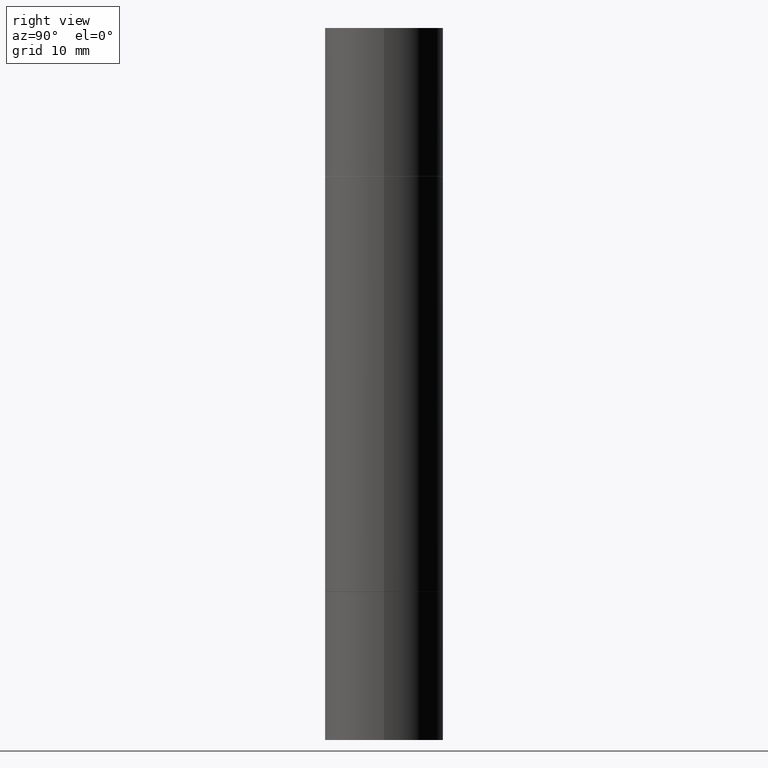
[diagram: clean part render]
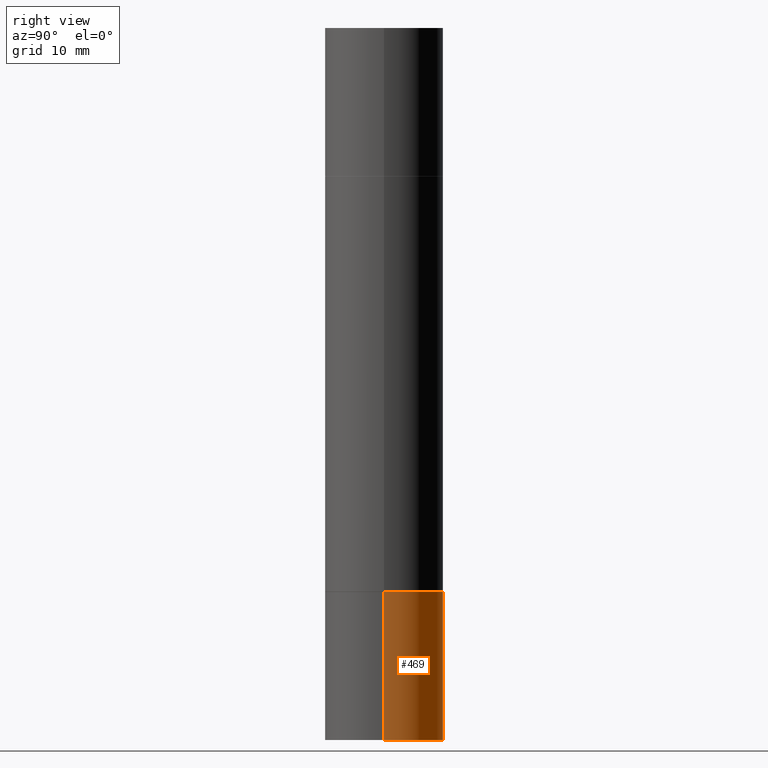
[diagram: same view with one face highlighted and labeled with its STEP entity id]
A machine part, right view. The second image highlights one B-rep face of the part: STEP entity #469.
In plain terms, the highlighted cylindrical surface (partial cylindrical patch) has radius 6.35 mm, axis along (-0, 0, 1).
Its self-contained STEP definition (entity closure, byte-faithful):
#14 = ORIENTED_EDGE ( 'NONE', *, *, #49, .F. ) ;
#49 = EDGE_CURVE ( 'NONE', #656, #619, #154, .T. ) ;
#98 = ORIENTED_EDGE ( 'NONE', *, *, #121, .F. ) ;
#118 = EDGE_CURVE ( 'NONE', #656, #542, #248, .T. ) ;
#121 = EDGE_CURVE ( 'NONE', #619, #498, #368, .T. ) ;
#154 = LINE ( 'NONE', #466, #301 ) ;
#189 = LINE ( 'NONE', #398, #369 ) ;
#211 = DIRECTION ( 'NONE',  ( 1.000000000000000000, -6.982962677686266711E-15, 0.000000000000000000 ) ) ;
#218 = DIRECTION ( 'NONE',  ( -2.445468806185136597E-29, 3.491481338843145583E-15, 1.000000000000000000 ) ) ;
#245 = DIRECTION ( 'NONE',  ( -2.445468806185136877E-29, 3.491481338843145188E-15, 1.000000000000000000 ) ) ;
#248 = CIRCLE ( 'NONE', #321, 0.2500000000000000000 ) ;
#255 = CARTESIAN_POINT ( 'NONE',  ( -0.2500000000000000000, -7.606999258740704349E-15, -3.000000000000000444 ) ) ;
#264 = CARTESIAN_POINT ( 'NONE',  ( 0.000000000000000000, 0.000000000000000000, 0.000000000000000000 ) ) ;
#265 = CARTESIAN_POINT ( 'NONE',  ( 5.807988414689700538E-29, -8.292268179752471696E-15, -2.375000000000000000 ) ) ;
#266 = CARTESIAN_POINT ( 'NONE',  ( 0.2500000000000000000, -1.222018468595100303E-14, -3.000000000000000444 ) ) ;
#267 = DIRECTION ( 'NONE',  ( -2.445468806185136877E-29, 3.491481338843145188E-15, 1.000000000000000000 ) ) ;
#281 = EDGE_LOOP ( 'NONE', ( #291, #560, #98, #14 ) ) ;
#291 = ORIENTED_EDGE ( 'NONE', *, *, #118, .T. ) ;
#301 = VECTOR ( 'NONE', #267, 39.37007874015748143 ) ;
#321 = AXIS2_PLACEMENT_3D ( 'NONE', #573, #521, #633 ) ;
#351 = FACE_OUTER_BOUND ( 'NONE', #281, .T. ) ;
#356 = EDGE_CURVE ( 'NONE', #542, #498, #189, .T. ) ;
#368 = CIRCLE ( 'NONE', #627, 0.2500000000000000000 ) ;
#369 = VECTOR ( 'NONE', #245, 39.37007874015748143 ) ;
#398 = CARTESIAN_POINT ( 'NONE',  ( -0.2500000000000000000, 1.776356839400250465E-15, -1.229733772563726445E-29 ) ) ;
#435 = AXIS2_PLACEMENT_3D ( 'NONE', #264, #562, #520 ) ;
#466 = CARTESIAN_POINT ( 'NONE',  ( 0.2500000000000000000, -1.745740669421566678E-15, 1.219044193948983948E-29 ) ) ;
#469 = ADVANCED_FACE ( 'NONE', ( #351 ), #554, .T. ) ;
#498 = VERTEX_POINT ( 'NONE', #564 ) ;
#511 = CARTESIAN_POINT ( 'NONE',  ( 0.2500000000000000000, -1.003800884917403837E-14, -2.375000000000000000 ) ) ;
#520 = DIRECTION ( 'NONE',  ( 1.000000000000000000, -6.982962677686266711E-15, 4.876176775795935793E-29 ) ) ;
#521 = DIRECTION ( 'NONE',  ( -2.445468806185136597E-29, 3.491481338843145583E-15, 1.000000000000000000 ) ) ;
#542 = VERTEX_POINT ( 'NONE', #255 ) ;
#554 = CYLINDRICAL_SURFACE ( 'NONE', #435, 0.2500000000000000000 ) ;
#560 = ORIENTED_EDGE ( 'NONE', *, *, #356, .T. ) ;
#562 = DIRECTION ( 'NONE',  ( -2.445468806185136597E-29, 3.491481338843145583E-15, 1.000000000000000000 ) ) ;
#564 = CARTESIAN_POINT ( 'NONE',  ( -0.2500000000000000000, -7.606999258740704349E-15, -2.375000000000000000 ) ) ;
#573 = CARTESIAN_POINT ( 'NONE',  ( 7.336406418555409790E-29, -1.047444401652943635E-14, -3.000000000000000444 ) ) ;
#619 = VERTEX_POINT ( 'NONE', #511 ) ;
#627 = AXIS2_PLACEMENT_3D ( 'NONE', #265, #218, #211 ) ;
#633 = DIRECTION ( 'NONE',  ( 1.000000000000000000, -6.982962677686262766E-15, 0.000000000000000000 ) ) ;
#656 = VERTEX_POINT ( 'NONE', #266 ) ;